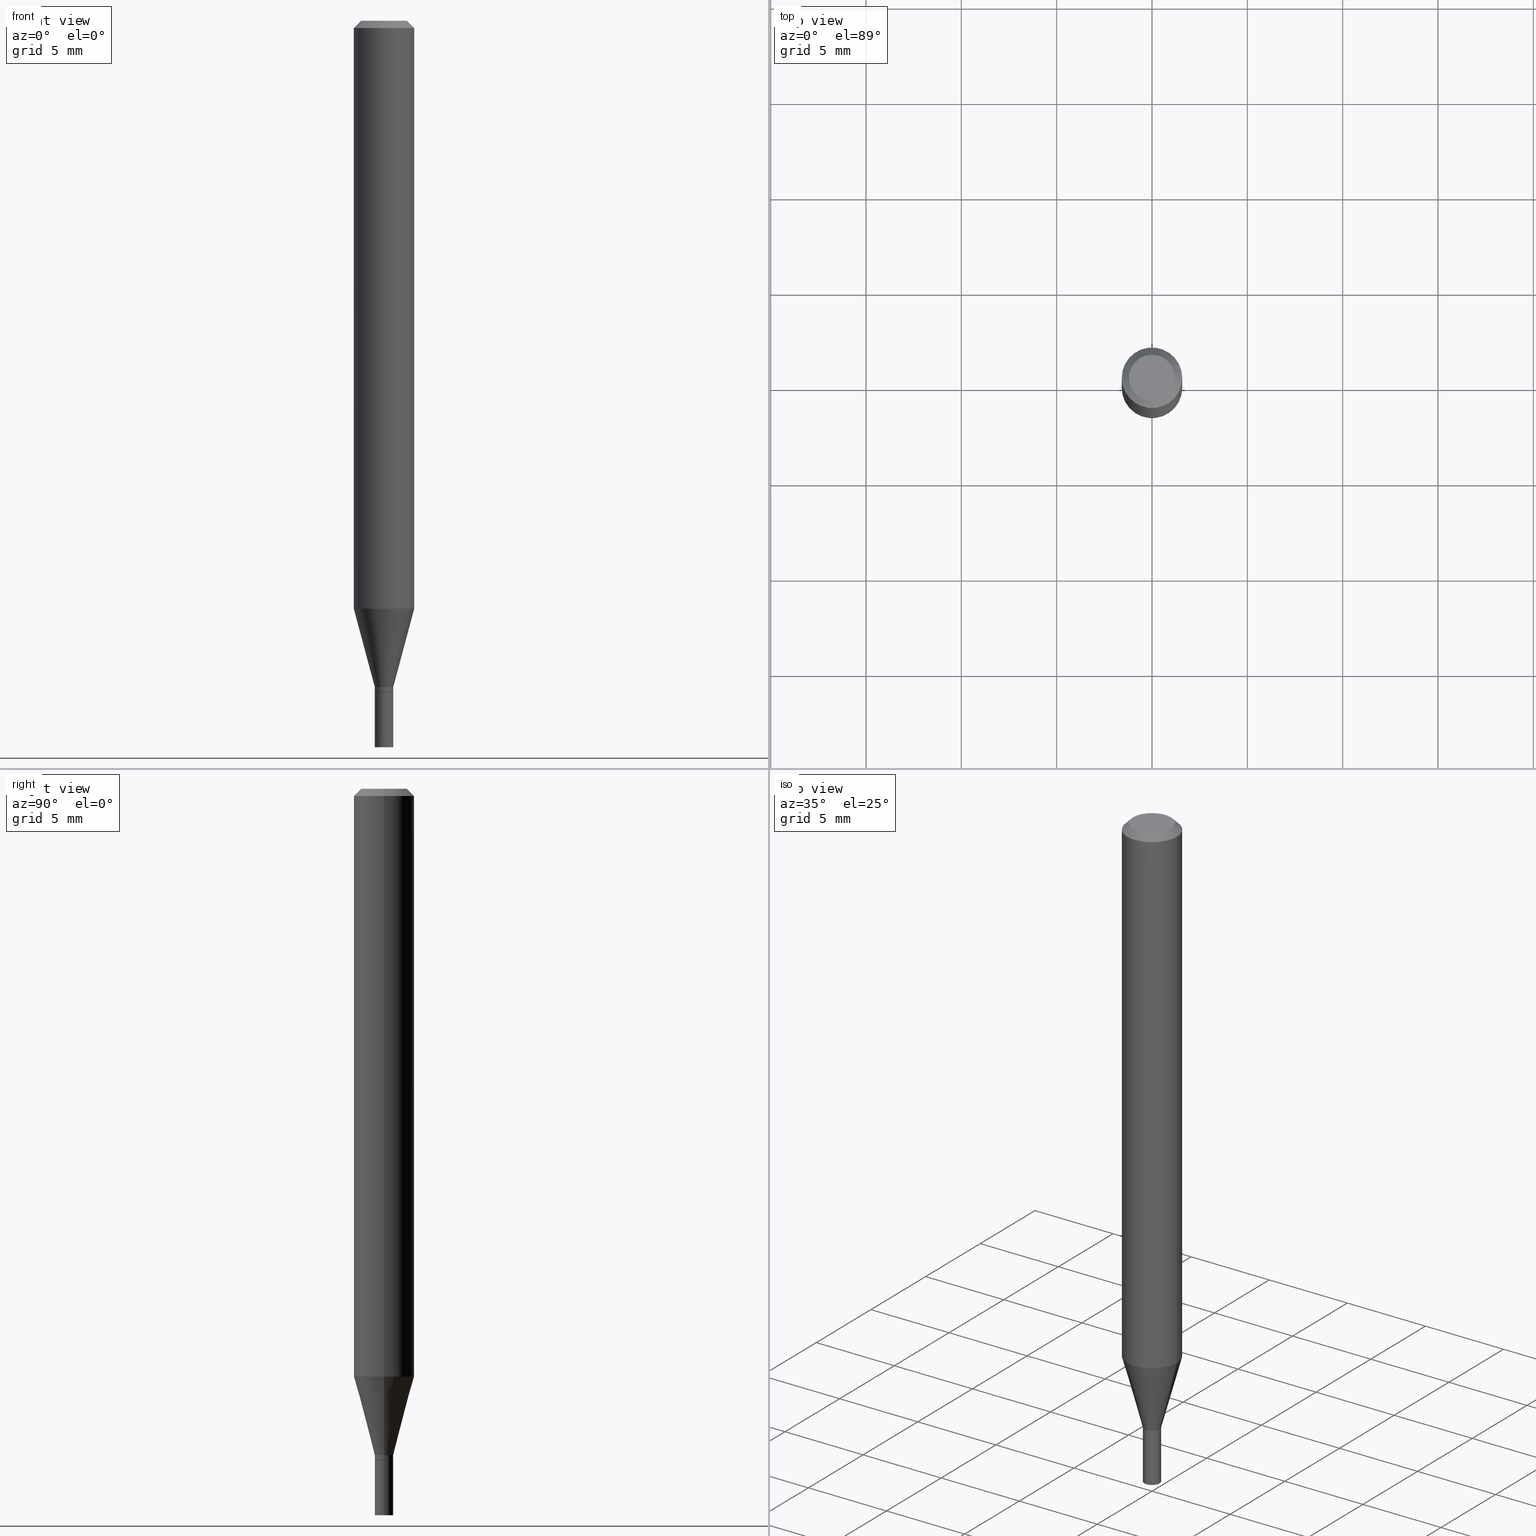
[diagram: canonical four-view strip — front | top / right | iso, engineering-drawing reading convention]
A machine part, canonical four-view strip (front | top / right | iso — engineering-drawing reading convention). The complete STEP part file that produces these views, byte-faithful:
ISO-10303-21;
HEADER;
FILE_DESCRIPTION (( 'STEP AP203' ),
    '1' );
FILE_NAME ('02308.STEP',
    '2024-03-18T20:04:31',
    ( '' ),
    ( '' ),
    'SwSTEP 2.0',
    'SolidWorks 2023',
    '' );
FILE_SCHEMA (( 'CONFIG_CONTROL_DESIGN' ));
ENDSEC;

DATA;
#1 = CARTESIAN_POINT ( 'NONE',  ( 0.01900000000000019382, -4.936954613124209308E-15, -1.376000000000000112 ) ) ;
#2 = LINE ( 'NONE', #113, #342 ) ;
#3 = ADVANCED_FACE ( 'NONE', ( #126 ), #114, .T. ) ;
#4 = ORIENTED_EDGE ( 'NONE', *, *, #362, .F. ) ;
#5 = PLANE ( 'NONE',  #60 ) ;
#6 = DIRECTION ( 'NONE',  ( 1.000000000000000000, -6.982962677686266711E-15, 0.000000000000000000 ) ) ;
#7 = ORIENTED_EDGE ( 'NONE', *, *, #214, .F. ) ;
#8 = CIRCLE ( 'NONE', #229, 0.06250000000000000000 ) ;
#9 = ADVANCED_FACE ( 'NONE', ( #200 ), #52, .T. ) ;
#10 = CARTESIAN_POINT ( 'NONE',  ( 0.06250000000000000000, -4.888073874380388472E-16, -0.01499999999999999944 ) ) ;
#11 = ORIENTED_EDGE ( 'NONE', *, *, #407, .T. ) ;
#12 = FACE_OUTER_BOUND ( 'NONE', #160, .T. ) ;
#13 = ORIENTED_EDGE ( 'NONE', *, *, #407, .F. ) ;
#14 = CIRCLE ( 'NONE', #44, 0.04749999999999999362 ) ;
#15 = CONICAL_SURFACE ( 'NONE', #146, 0.01849999999999999908, 0.7853981633974718157 ) ;
#16 = PERSON_AND_ORGANIZATION_ROLE ( 'creator' ) ;
#17 = CC_DESIGN_PERSON_AND_ORGANIZATION_ASSIGNMENT ( #246, #242, ( #327 ) ) ;
#18 = ORIENTED_EDGE ( 'NONE', *, *, #375, .T. ) ;
#19 = AXIS2_PLACEMENT_3D ( 'NONE', #177, #460, #277 ) ;
#20 = EDGE_CURVE ( 'NONE', #217, #151, #265, .T. ) ;
#21 = AXIS2_PLACEMENT_3D ( 'NONE', #95, #57, #347 ) ;
#22 = LINE ( 'NONE', #161, #35 ) ;
#23 = FACE_OUTER_BOUND ( 'NONE', #121, .T. ) ;
#24 = DIRECTION ( 'NONE',  ( 1.000000000000000000, -6.982962677686267499E-15, 4.884662768193073002E-29 ) ) ;
#25 = APPROVAL_ROLE ( '' ) ;
#26 = AXIS2_PLACEMENT_3D ( 'NONE', #284, #432, #104 ) ;
#27 = FACE_OUTER_BOUND ( 'NONE', #421, .T. ) ;
#28 = LOCAL_TIME ( 16, 4, 31.00000000000000000, #103 ) ;
#29 = CALENDAR_DATE ( 2024, 18, 3 ) ;
#30 = CARTESIAN_POINT ( 'NONE',  ( 0.000000000000000000, 0.000000000000000000, 0.000000000000000000 ) ) ;
#31 = LINE ( 'NONE', #1, #340 ) ;
#32 = EDGE_CURVE ( 'NONE', #423, #336, #87, .T. ) ;
#33 = DIRECTION ( 'NONE',  ( -1.000000000000000000, 6.982962677686265922E-15, -4.876176775795935793E-29 ) ) ;
#34 = EDGE_CURVE ( 'NONE', #295, #38, #22, .T. ) ;
#35 = VECTOR ( 'NONE', #263, 39.37007874015748854 ) ;
#36 = AXIS2_PLACEMENT_3D ( 'NONE', #216, #252, #6 ) ;
#37 = FACE_OUTER_BOUND ( 'NONE', #58, .T. ) ;
#38 = VERTEX_POINT ( 'NONE', #414 ) ;
#39 = CARTESIAN_POINT ( 'NONE',  ( -0.01849999999999999908, -4.705093502346870917E-15, -1.386000000000000121 ) ) ;
#40 = EDGE_CURVE ( 'NONE', #202, #423, #452, .T. ) ;
#41 = ORIENTED_EDGE ( 'NONE', *, *, #345, .T. ) ;
#42 = CARTESIAN_POINT ( 'NONE',  ( 0.01899999999999999953, -5.369898299140757970E-15, -1.500000000000000222 ) ) ;
#43 = ORIENTED_EDGE ( 'NONE', *, *, #445, .F. ) ;
#44 = AXIS2_PLACEMENT_3D ( 'NONE', #357, #178, #24 ) ;
#45 = CC_DESIGN_SECURITY_CLASSIFICATION ( #417, ( #327 ) ) ;
#46 = DIRECTION ( 'NONE',  ( 2.445468806185136597E-29, -3.491481338843145583E-15, -1.000000000000000000 ) ) ;
#47 = ORIENTED_EDGE ( 'NONE', *, *, #214, .T. ) ;
#48 = EDGE_CURVE ( 'NONE', #202, #295, #198, .T. ) ;
#49 = LINE ( 'NONE', #312, #179 ) ;
#50 = ORIENTED_EDGE ( 'NONE', *, *, #255, .F. ) ;
#51 = DIRECTION ( 'NONE',  ( 0.000000000000000000, 0.000000000000000000, 1.000000000000000000 ) ) ;
#52 = CYLINDRICAL_SURFACE ( 'NONE', #21, 0.06250000000000000000 ) ;
#53 = AXIS2_PLACEMENT_3D ( 'NONE', #331, #46, #218 ) ;
#54 = DIRECTION ( 'NONE',  ( -2.445468806185136597E-29, 3.491481338843145583E-15, 1.000000000000000000 ) ) ;
#55 =( CONVERSION_BASED_UNIT ( 'INCH', #377 ) LENGTH_UNIT ( ) NAMED_UNIT ( #211 ) );
#56 = CARTESIAN_POINT ( 'NONE',  ( 0.06250000000000000000, -4.364351673553916694E-16, 3.047610484872459871E-30 ) ) ;
#57 = DIRECTION ( 'NONE',  ( -2.445468806185136597E-29, 3.491481338843145583E-15, 1.000000000000000000 ) ) ;
#58 = EDGE_LOOP ( 'NONE', ( #75, #274, #4, #77 ) ) ;
#59 = AXIS2_PLACEMENT_3D ( 'NONE', #85, #54, #267 ) ;
#60 = AXIS2_PLACEMENT_3D ( 'NONE', #444, #257, #192 ) ;
#61 = APPROVAL_DATE_TIME ( #386, #127 ) ;
#62 = ORIENTED_EDGE ( 'NONE', *, *, #438, .T. ) ;
#63 = ORIENTED_EDGE ( 'NONE', *, *, #234, .T. ) ;
#64 = CYLINDRICAL_SURFACE ( 'NONE', #278, 0.01899999999999999953 ) ;
#65 = DIRECTION ( 'NONE',  ( -2.445468806185136597E-29, 3.491481338843145583E-15, 1.000000000000000000 ) ) ;
#66 = CARTESIAN_POINT ( 'NONE',  ( 3.576687321579069994E-29, -5.368277968210015545E-15, -1.500000000000000222 ) ) ;
#67 = VECTOR ( 'NONE', #346, 39.37007874015748143 ) ;
#68 = CYLINDRICAL_SURFACE ( 'NONE', #228, 0.01899999999999999953 ) ;
#69 = ADVANCED_FACE ( 'NONE', ( #92 ), #285, .F. ) ;
#70 = DIRECTION ( 'NONE',  ( 1.000000000000000000, -6.982962677686266711E-15, 4.876176775795935793E-29 ) ) ;
#71 = CARTESIAN_POINT ( 'NONE',  ( 0.01849999999999999908, -4.968377945173796372E-15, -1.386000000000000121 ) ) ;
#72 = CIRCLE ( 'NONE', #19, 0.01900000000000019382 ) ;
#73 = ORIENTED_EDGE ( 'NONE', *, *, #143, .F. ) ;
#74 = DIRECTION ( 'NONE',  ( 1.000000000000000000, -6.982962677686267499E-15, 4.884662768193073002E-29 ) ) ;
#75 = ORIENTED_EDGE ( 'NONE', *, *, #143, .T. ) ;
#76 = CARTESIAN_POINT ( 'NONE',  ( 3.668203209277705088E-31, -5.237222008264718399E-17, -0.01499999999999999944 ) ) ;
#77 = ORIENTED_EDGE ( 'NONE', *, *, #291, .F. ) ;
#78 = DIRECTION ( 'NONE',  ( -2.445468806185136597E-29, 3.491481338843145583E-15, 1.000000000000000000 ) ) ;
#79 = AXIS2_PLACEMENT_3D ( 'NONE', #247, #322, #241 ) ;
#80 = VECTOR ( 'NONE', #220, 39.37007874015748143 ) ;
#81 = LINE ( 'NONE', #337, #245 ) ;
#82 = VERTEX_POINT ( 'NONE', #427 ) ;
#83 = ADVANCED_FACE ( 'NONE', ( #23 ), #268, .T. ) ;
#84 = PERSON_AND_ORGANIZATION_ROLE ( 'design_owner' ) ;
#85 = CARTESIAN_POINT ( 'NONE',  ( 3.388197030969507728E-29, -4.837447394967178871E-15, -1.385500000000000398 ) ) ;
#86 = DIRECTION ( 'NONE',  ( 1.000000000000000000, -6.982962677686261977E-15, 0.000000000000000000 ) ) ;
#87 = LINE ( 'NONE', #227, #286 ) ;
#88 = CLOSED_SHELL ( 'NONE', ( #183, #326, #3, #9, #120, #311, #206, #221, #339, #100, #83, #159 ) ) ;
#89 = CIRCLE ( 'NONE', #288, 0.01900000000000019382 ) ;
#90 = PERSON_AND_ORGANIZATION ( #275, #175 ) ;
#91 = EDGE_CURVE ( 'NONE', #440, #367, #14, .T. ) ;
#92 = FACE_OUTER_BOUND ( 'NONE', #412, .T. ) ;
#93 = PERSON_AND_ORGANIZATION ( #275, #175 ) ;
#94 = ORIENTED_EDGE ( 'NONE', *, *, #40, .F. ) ;
#95 = CARTESIAN_POINT ( 'NONE',  ( 0.000000000000000000, 0.000000000000000000, 0.000000000000000000 ) ) ;
#96 = ORIENTED_EDGE ( 'NONE', *, *, #255, .T. ) ;
#97 = VECTOR ( 'NONE', #418, 39.37007874015748143 ) ;
#98 = AXIS2_PLACEMENT_3D ( 'NONE', #222, #439, #33 ) ;
#99 = CARTESIAN_POINT ( 'NONE',  ( 3.389419765372599969E-29, -4.839193135636600375E-15, -1.386000000000000121 ) ) ;
#100 = ADVANCED_FACE ( 'NONE', ( #289 ), #458, .F. ) ;
#101 = DATE_AND_TIME ( #462, #196 ) ;
#102 = DIRECTION ( 'NONE',  ( 1.000000000000000000, -6.982962677686254089E-15, 0.000000000000000000 ) ) ;
#103 = COORDINATED_UNIVERSAL_TIME_OFFSET ( 5, 0, .BEHIND. ) ;
#104 = DIRECTION ( 'NONE',  ( 1.000000000000000000, -6.982962677686265133E-15, 4.876176775795935232E-29 ) ) ;
#105 = SECURITY_CLASSIFICATION_LEVEL ( 'unclassified' ) ;
#106 = DIRECTION ( 'NONE',  ( -2.438088387897960049E-29, 3.491481338843145188E-15, 1.000000000000000000 ) ) ;
#107 = VECTOR ( 'NONE', #384, 39.37007874015748143 ) ;
#108 = ADVANCED_FACE ( 'NONE', ( #433 ), #64, .T. ) ;
#109 = EDGE_CURVE ( 'NONE', #303, #217, #441, .T. ) ;
#110 = CYLINDRICAL_SURFACE ( 'NONE', #287, 0.06250000000000000000 ) ;
#111 = CARTESIAN_POINT ( 'NONE',  ( -0.01899999999999999953, -4.903204452156240515E-15, -1.386000000000000121 ) ) ;
#112 = ORIENTED_EDGE ( 'NONE', *, *, #296, .F. ) ;
#113 = CARTESIAN_POINT ( 'NONE',  ( -0.01899999999999999953, 1.350031197944190320E-16, -9.345976671484319990E-31 ) ) ;
#114 = CONICAL_SURFACE ( 'NONE', #459, 0.06250000000000000000, 0.7853981633974452814 ) ;
#115 = ORIENTED_EDGE ( 'NONE', *, *, #291, .T. ) ;
#116 = CARTESIAN_POINT ( 'NONE',  ( 2.967957375574913989E-29, -4.237456542112679022E-15, -1.213655789870754953 ) ) ;
#117 = DIRECTION ( 'NONE',  ( -2.445468806185136597E-29, 3.491481338843145583E-15, 1.000000000000000000 ) ) ;
#118 = ORIENTED_EDGE ( 'NONE', *, *, #109, .F. ) ;
#119 = DIRECTION ( 'NONE',  ( -2.445468806185136597E-29, 3.491481338843145583E-15, 1.000000000000000000 ) ) ;
#120 = ADVANCED_FACE ( 'NONE', ( #430 ), #153, .T. ) ;
#121 = EDGE_LOOP ( 'NONE', ( #378, #231, #115, #94 ) ) ;
#122 = CARTESIAN_POINT ( 'NONE',  ( 3.668203209277705088E-31, -5.237222008264718399E-17, -0.01499999999999999944 ) ) ;
#123 = EDGE_LOOP ( 'NONE', ( #185, #451 ) ) ;
#124 = EDGE_LOOP ( 'NONE', ( #219, #299, #360, #193 ) ) ;
#125 = DIRECTION ( 'NONE',  ( 1.000000000000000000, 0.000000000000000000, 0.000000000000000000 ) ) ;
#126 = FACE_OUTER_BOUND ( 'NONE', #338, .T. ) ;
#127 = APPROVAL ( #240, 'UNSPECIFIED' ) ;
#128 =( GEOMETRIC_REPRESENTATION_CONTEXT ( 3 ) GLOBAL_UNCERTAINTY_ASSIGNED_CONTEXT ( ( #166 ) ) GLOBAL_UNIT_ASSIGNED_CONTEXT ( ( #55, #164, #309 ) ) REPRESENTATION_CONTEXT ( 'NONE', 'WORKASPACE' ) );
#129 = DATE_AND_TIME ( #453, #454 ) ;
#130 = ORIENTED_EDGE ( 'NONE', *, *, #158, .T. ) ;
#131 = APPLICATION_PROTOCOL_DEFINITION ( 'international standard', 'config_control_design', 1994, #283 ) ;
#132 = DIRECTION ( 'NONE',  ( -1.000000000000000000, 6.982962677686266711E-15, 0.000000000000000000 ) ) ;
#133 = EDGE_LOOP ( 'NONE', ( #383, #424, #7, #169 ) ) ;
#134 = DIRECTION ( 'NONE',  ( -2.445468806185136597E-29, 3.491481338843145583E-15, 1.000000000000000000 ) ) ;
#135 = EDGE_CURVE ( 'NONE', #336, #295, #72, .T. ) ;
#136 = CIRCLE ( 'NONE', #154, 0.06250000000000000000 ) ;
#137 = AXIS2_PLACEMENT_3D ( 'NONE', #266, #304, #413 ) ;
#138 = APPROVAL_DATE_TIME ( #101, #203 ) ;
#139 = DIRECTION ( 'NONE',  ( 1.000000000000000000, -6.982962677686261977E-15, 0.000000000000000000 ) ) ;
#140 = PERSON_AND_ORGANIZATION_ROLE ( 'creator' ) ;
#141 = CYLINDRICAL_SURFACE ( 'NONE', #26, 0.01900000000000005851 ) ;
#142 = PERSON_AND_ORGANIZATION ( #275, #175 ) ;
#143 = EDGE_CURVE ( 'NONE', #253, #306, #379, .T. ) ;
#144 = CARTESIAN_POINT ( 'NONE',  ( 3.389419765372599969E-29, -4.839193135636600375E-15, -1.386000000000000121 ) ) ;
#145 = CIRCLE ( 'NONE', #408, 0.01899999999999999953 ) ;
#146 = AXIS2_PLACEMENT_3D ( 'NONE', #300, #329, #180 ) ;
#147 = DIRECTION ( 'NONE',  ( 1.000000000000000000, -6.982962677686265922E-15, 4.876176775795935793E-29 ) ) ;
#148 = LINE ( 'NONE', #186, #188 ) ;
#149 = EDGE_LOOP ( 'NONE', ( #47, #41, #437, #43 ) ) ;
#150 = CARTESIAN_POINT ( 'NONE',  ( -0.04749999999999999362, 3.578768372314211985E-16, 9.340792028744928118E-17 ) ) ;
#151 = VERTEX_POINT ( 'NONE', #176 ) ;
#152 = CARTESIAN_POINT ( 'NONE',  ( 3.388197030969507728E-29, -4.837447394967178871E-15, -1.385500000000000398 ) ) ;
#153 = CONICAL_SURFACE ( 'NONE', #187, 0.01900000000000019382, 0.2617993877991499629 ) ;
#154 = AXIS2_PLACEMENT_3D ( 'NONE', #212, #117, #157 ) ;
#155 = ORIENTED_EDGE ( 'NONE', *, *, #388, .T. ) ;
#156 = DIRECTION ( 'NONE',  ( -2.445468806185136597E-29, 3.491481338843145583E-15, 1.000000000000000000 ) ) ;
#157 = DIRECTION ( 'NONE',  ( 1.000000000000000000, -6.982962677686262766E-15, 0.000000000000000000 ) ) ;
#158 = EDGE_CURVE ( 'NONE', #151, #355, #145, .T. ) ;
#159 = ADVANCED_FACE ( 'NONE', ( #323 ), #358, .T. ) ;
#160 = EDGE_LOOP ( 'NONE', ( #163, #62, #189, #353 ) ) ;
#161 = CARTESIAN_POINT ( 'NONE',  ( -0.01900000000000019382, -4.669275202453748782E-15, -1.376000000000000112 ) ) ;
#162 = APPROVAL_PERSON_ORGANIZATION ( #93, #203, #276 ) ;
#163 = ORIENTED_EDGE ( 'NONE', *, *, #34, .F. ) ;
#164 =( NAMED_UNIT ( * ) PLANE_ANGLE_UNIT ( ) SI_UNIT ( $, .RADIAN. ) );
#165 = CARTESIAN_POINT ( 'NONE',  ( -0.01900000000000005851, 1.350031197944194510E-16, -9.345976671484349768E-31 ) ) ;
#166 = UNCERTAINTY_MEASURE_WITH_UNIT (LENGTH_MEASURE( 1.000000000000000082E-05 ), #55, 'distance_accuracy_value', 'NONE');
#167 = DATE_AND_TIME ( #194, #401 ) ;
#168 = CARTESIAN_POINT ( 'NONE',  ( -0.01849999999999999908, -4.707742729520982118E-15, -1.386000000000000121 ) ) ;
#169 = ORIENTED_EDGE ( 'NONE', *, *, #191, .F. ) ;
#170 = ADVANCED_FACE ( 'NONE', ( #363 ), #68, .T. ) ;
#171 = DIRECTION ( 'NONE',  ( 1.000000000000000000, -6.982962677686254089E-15, 0.000000000000000000 ) ) ;
#172 = APPLICATION_CONTEXT ( 'configuration controlled 3d designs of mechanical parts and assemblies' ) ;
#173 = CARTESIAN_POINT ( 'NONE',  ( 0.000000000000000000, 0.000000000000000000, 0.000000000000000000 ) ) ;
#174 = AXIS2_PLACEMENT_3D ( 'NONE', #99, #204, #239 ) ;
#175 = ORGANIZATION ( 'UNSPECIFIED', 'UNSPECIFIED', '' ) ;
#176 = CARTESIAN_POINT ( 'NONE',  ( 0.01899999999999999953, -4.971869426512640168E-15, -1.386000000000000121 ) ) ;
#177 = CARTESIAN_POINT ( 'NONE',  ( 3.364965077310747863E-29, -4.804278322248168726E-15, -1.376000000000000112 ) ) ;
#178 = DIRECTION ( 'NONE',  ( -2.445468806185136597E-29, 3.491481338843145583E-15, 1.000000000000000000 ) ) ;
#179 = VECTOR ( 'NONE', #343, 39.37007874015748143 ) ;
#180 = DIRECTION ( 'NONE',  ( 1.000000000000000000, -6.982962677686254089E-15, 0.000000000000000000 ) ) ;
#181 = MANIFOLD_SOLID_BREP ( 'Body-Move/Copy2[2]', #88 ) ;
#182 = LINE ( 'NONE', #302, #80 ) ;
#183 = ADVANCED_FACE ( 'NONE', ( #27 ), #141, .T. ) ;
#184 = DIRECTION ( 'NONE',  ( -2.445468806185136597E-29, 3.491481338843145583E-15, 1.000000000000000000 ) ) ;
#185 = ORIENTED_EDGE ( 'NONE', *, *, #296, .T. ) ;
#186 = CARTESIAN_POINT ( 'NONE',  ( -0.06250000000000000000, 3.840629472727444916E-16, -0.01499999999999999944 ) ) ;
#187 = AXIS2_PLACEMENT_3D ( 'NONE', #361, #65, #139 ) ;
#188 = VECTOR ( 'NONE', #364, 39.37007874015748143 ) ;
#189 = ORIENTED_EDGE ( 'NONE', *, *, #191, .T. ) ;
#190 = CC_DESIGN_PERSON_AND_ORGANIZATION_ASSIGNMENT ( #321, #140, ( #327 ) ) ;
#191 = EDGE_CURVE ( 'NONE', #336, #82, #31, .T. ) ;
#192 = DIRECTION ( 'NONE',  ( -1.000000000000000000, 6.982962677686265922E-15, -4.876176775795935793E-29 ) ) ;
#193 = ORIENTED_EDGE ( 'NONE', *, *, #438, .F. ) ;
#194 = CALENDAR_DATE ( 2024, 18, 3 ) ;
#195 = ORIENTED_EDGE ( 'NONE', *, *, #109, .T. ) ;
#196 = LOCAL_TIME ( 16, 4, 31.00000000000000000, #235 ) ;
#197 = CARTESIAN_POINT ( 'NONE',  ( -0.06250000000000000000, -1.700825171247600434E-15, -0.01499999999999999944 ) ) ;
#198 = LINE ( 'NONE', #165, #97 ) ;
#199 = PERSON_AND_ORGANIZATION ( #275, #175 ) ;
#200 = FACE_OUTER_BOUND ( 'NONE', #149, .T. ) ;
#201 = ORIENTED_EDGE ( 'NONE', *, *, #375, .F. ) ;
#202 = VERTEX_POINT ( 'NONE', #392 ) ;
#203 = APPROVAL ( #317, 'UNSPECIFIED' ) ;
#204 = DIRECTION ( 'NONE',  ( -2.438088387897960049E-29, 3.491481338843145188E-15, 1.000000000000000000 ) ) ;
#205 = DIRECTION ( 'NONE',  ( -2.445468806185136597E-29, 3.491481338843145583E-15, 1.000000000000000000 ) ) ;
#206 = ADVANCED_FACE ( 'NONE', ( #435 ), #110, .T. ) ;
#207 = APPROVAL_PERSON_ORGANIZATION ( #142, #127, #25 ) ;
#208 = PERSON_AND_ORGANIZATION_ROLE ( 'classification_officer' ) ;
#209 = DIRECTION ( 'NONE',  ( 1.000000000000000000, -6.982962677686281699E-15, 0.000000000000000000 ) ) ;
#210 = DIRECTION ( 'NONE',  ( -2.445468806185136597E-29, 3.491481338843145583E-15, 1.000000000000000000 ) ) ;
#211 = DIMENSIONAL_EXPONENTS ( 1.000000000000000000, 0.000000000000000000, 0.000000000000000000, 0.000000000000000000, 0.000000000000000000, 0.000000000000000000, 0.000000000000000000 ) ;
#212 = CARTESIAN_POINT ( 'NONE',  ( 2.967957375574913989E-29, -4.237456542112679022E-15, -1.213655789870754953 ) ) ;
#213 = AXIS2_PLACEMENT_3D ( 'NONE', #325, #134, #171 ) ;
#214 = EDGE_CURVE ( 'NONE', #82, #38, #136, .T. ) ;
#215 = AXIS2_PLACEMENT_3D ( 'NONE', #399, #78, #74 ) ;
#216 = CARTESIAN_POINT ( 'NONE',  ( 3.668203209277705088E-31, -5.237222008264718399E-17, -0.01499999999999999944 ) ) ;
#217 = VERTEX_POINT ( 'NONE', #42 ) ;
#218 = DIRECTION ( 'NONE',  ( -1.000000000000000000, 6.982962677686266711E-15, 0.000000000000000000 ) ) ;
#219 = ORIENTED_EDGE ( 'NONE', *, *, #48, .F. ) ;
#220 = DIRECTION ( 'NONE',  ( 0.7071067811865642261, -2.468850131082431399E-15, 0.7071067811865309194 ) ) ;
#221 = ADVANCED_FACE ( 'NONE', ( #405 ), #428, .T. ) ;
#222 = CARTESIAN_POINT ( 'NONE',  ( 1.326762908760729501E-16, 0.01899999999999515965, -1.386000000000000121 ) ) ;
#223 = VERTEX_POINT ( 'NONE', #10 ) ;
#224 = COORDINATED_UNIVERSAL_TIME_OFFSET ( 5, 0, .BEHIND. ) ;
#225 = ORIENTED_EDGE ( 'NONE', *, *, #135, .F. ) ;
#226 = CARTESIAN_POINT ( 'NONE',  ( 3.364965077310747863E-29, -4.804278322248168726E-15, -1.376000000000000112 ) ) ;
#227 = CARTESIAN_POINT ( 'NONE',  ( 0.01900000000000005851, -1.326762908760394481E-16, 9.264735874012305402E-31 ) ) ;
#228 = AXIS2_PLACEMENT_3D ( 'NONE', #281, #210, #391 ) ;
#229 = AXIS2_PLACEMENT_3D ( 'NONE', #76, #449, #232 ) ;
#230 = COORDINATED_UNIVERSAL_TIME_OFFSET ( 5, 0, .BEHIND. ) ;
#231 = ORIENTED_EDGE ( 'NONE', *, *, #393, .T. ) ;
#232 = DIRECTION ( 'NONE',  ( 1.000000000000000000, -6.982962677686266711E-15, 0.000000000000000000 ) ) ;
#233 = DIRECTION ( 'NONE',  ( 2.445468806185136597E-29, -3.491481338843145583E-15, -1.000000000000000000 ) ) ;
#234 = EDGE_CURVE ( 'NONE', #303, #355, #2, .T. ) ;
#235 = COORDINATED_UNIVERSAL_TIME_OFFSET ( 5, 0, .BEHIND. ) ;
#236 = CARTESIAN_POINT ( 'NONE',  ( 0.01899999999999999953, -1.326762908760390537E-16, 9.264735874012277376E-31 ) ) ;
#237 = ORIENTED_EDGE ( 'NONE', *, *, #91, .F. ) ;
#238 = AXIS2_PLACEMENT_3D ( 'NONE', #368, #156, #402 ) ;
#239 = DIRECTION ( 'NONE',  ( 1.000000000000000000, -6.982962677686265922E-15, 4.876176775795935793E-29 ) ) ;
#240 = APPROVAL_STATUS ( 'not_yet_approved' ) ;
#241 = DIRECTION ( 'NONE',  ( 1.000000000000000000, -6.982962677686281699E-15, 0.000000000000000000 ) ) ;
#242 = PERSON_AND_ORGANIZATION_ROLE ( 'design_supplier' ) ;
#243 = DIRECTION ( 'NONE',  ( 0.2588190451025212391, 1.565188264969622362E-15, 0.9659258262890679791 ) ) ;
#244 = AXIS2_PLACEMENT_3D ( 'NONE', #30, #397, #463 ) ;
#245 = VECTOR ( 'NONE', #328, 39.37007874015748143 ) ;
#246 = PERSON_AND_ORGANIZATION ( #275, #175 ) ;
#247 = CARTESIAN_POINT ( 'NONE',  ( 3.668203209277704895E-29, -5.237222008264718177E-15, -1.500000000000000222 ) ) ;
#248 = CARTESIAN_POINT ( 'NONE',  ( 0.000000000000000000, 0.000000000000000000, 0.000000000000000000 ) ) ;
#249 = EDGE_CURVE ( 'NONE', #367, #396, #148, .T. ) ;
#250 = CARTESIAN_POINT ( 'NONE',  ( 3.668203209277704895E-29, -5.237222008264718177E-15, -1.500000000000000222 ) ) ;
#251 = ORIENTED_EDGE ( 'NONE', *, *, #48, .T. ) ;
#252 = DIRECTION ( 'NONE',  ( -2.445468806185136597E-29, 3.491481338843145583E-15, 1.000000000000000000 ) ) ;
#253 = VERTEX_POINT ( 'NONE', #71 ) ;
#254 = DIRECTION ( 'NONE',  ( -2.445468806185136597E-29, 3.491481338843145583E-15, 1.000000000000000000 ) ) ;
#255 = EDGE_CURVE ( 'NONE', #355, #151, #448, .T. ) ;
#256 = ORIENTED_EDGE ( 'NONE', *, *, #385, .T. ) ;
#257 = DIRECTION ( 'NONE',  ( 2.438088387897960049E-29, -3.491481338843145188E-15, -1.000000000000000000 ) ) ;
#258 = CLOSED_SHELL ( 'NONE', ( #108, #69, #170, #307 ) ) ;
#259 = PLANE ( 'NONE',  #98 ) ;
#260 = CC_DESIGN_APPROVAL ( #290, ( #271 ) ) ;
#261 = ORIENTED_EDGE ( 'NONE', *, *, #32, .F. ) ;
#262 = CARTESIAN_POINT ( 'NONE',  ( 0.000000000000000000, 0.000000000000000000, 0.000000000000000000 ) ) ;
#263 = DIRECTION ( 'NONE',  ( -0.2588190451025212391, 5.211531920934549464E-15, 0.9659258262890679791 ) ) ;
#264 = CC_DESIGN_DATE_AND_TIME_ASSIGNMENT ( #129, #420, ( #271 ) ) ;
#265 = LINE ( 'NONE', #236, #394 ) ;
#266 = CARTESIAN_POINT ( 'NONE',  ( 3.389419765372599969E-29, -4.839193135636600375E-15, -1.386000000000000121 ) ) ;
#267 = DIRECTION ( 'NONE',  ( 1.000000000000000000, -6.982962677686258822E-15, 0.000000000000000000 ) ) ;
#268 = CONICAL_SURFACE ( 'NONE', #213, 0.01849999999999999908, 0.7853981633974718157 ) ;
#269 = AXIS2_PLACEMENT_3D ( 'NONE', #116, #254, #404 ) ;
#270 = LINE ( 'NONE', #168, #107 ) ;
#271 = PRODUCT_DEFINITION ( 'UNKNOWN', '', #327, #315 ) ;
#272 = EDGE_LOOP ( 'NONE', ( #13, #112, #373, #155 ) ) ;
#273 = APPROVAL_ROLE ( '' ) ;
#274 = ORIENTED_EDGE ( 'NONE', *, *, #431, .T. ) ;
#275 = PERSON ( 'UNSPECIFIED', 'UNSPECIFIED', 'UNSPECIFIED', ('UNSPECIFIED'), ('UNSPECIFIED'), ('UNSPECIFIED') ) ;
#276 = APPROVAL_ROLE ( '' ) ;
#277 = DIRECTION ( 'NONE',  ( 1.000000000000000000, -6.982962677686261977E-15, 0.000000000000000000 ) ) ;
#278 = AXIS2_PLACEMENT_3D ( 'NONE', #173, #318, #466 ) ;
#279 = CIRCLE ( 'NONE', #320, 0.01899999999999992320 ) ;
#280 = COORDINATED_UNIVERSAL_TIME_OFFSET ( 5, 0, .BEHIND. ) ;
#281 = CARTESIAN_POINT ( 'NONE',  ( 0.000000000000000000, 0.000000000000000000, 0.000000000000000000 ) ) ;
#282 = PERSON_AND_ORGANIZATION ( #275, #175 ) ;
#283 = APPLICATION_CONTEXT ( 'configuration controlled 3d designs of mechanical parts and assemblies' ) ;
#284 = CARTESIAN_POINT ( 'NONE',  ( 0.000000000000000000, 0.000000000000000000, 0.000000000000000000 ) ) ;
#285 = PLANE ( 'NONE',  #350 ) ;
#286 = VECTOR ( 'NONE', #381, 39.37007874015748143 ) ;
#287 = AXIS2_PLACEMENT_3D ( 'NONE', #248, #398, #70 ) ;
#288 = AXIS2_PLACEMENT_3D ( 'NONE', #226, #422, #86 ) ;
#289 = FACE_OUTER_BOUND ( 'NONE', #344, .T. ) ;
#290 = APPROVAL ( #415, 'UNSPECIFIED' ) ;
#291 = EDGE_CURVE ( 'NONE', #253, #423, #182, .T. ) ;
#292 = CARTESIAN_POINT ( 'NONE',  ( -0.01899999999999999953, -4.903204452156240515E-15, -1.500000000000000222 ) ) ;
#293 = ORIENTED_EDGE ( 'NONE', *, *, #249, .F. ) ;
#294 = DIRECTION ( 'NONE',  ( -2.445468806185136597E-29, 3.491481338843145583E-15, 1.000000000000000000 ) ) ;
#295 = VERTEX_POINT ( 'NONE', #447 ) ;
#296 = EDGE_CURVE ( 'NONE', #367, #440, #395, .T. ) ;
#297 = CONICAL_SURFACE ( 'NONE', #359, 0.01900000000000019382, 0.2617993877991499629 ) ;
#298 = DIRECTION ( 'NONE',  ( 1.000000000000000000, -6.982962677686258822E-15, 0.000000000000000000 ) ) ;
#299 = ORIENTED_EDGE ( 'NONE', *, *, #40, .T. ) ;
#300 = CARTESIAN_POINT ( 'NONE',  ( 3.389419765372599969E-29, -4.839193135636600375E-15, -1.386000000000000121 ) ) ;
#301 = EDGE_LOOP ( 'NONE', ( #426, #195, #403, #50 ) ) ;
#302 = CARTESIAN_POINT ( 'NONE',  ( 0.01849999999999999908, -4.968377945173796372E-15, -1.386000000000000121 ) ) ;
#303 = VERTEX_POINT ( 'NONE', #292 ) ;
#304 = DIRECTION ( 'NONE',  ( -2.445468806185136597E-29, 3.491481338843145583E-15, 1.000000000000000000 ) ) ;
#305 = CIRCLE ( 'NONE', #269, 0.06250000000000000000 ) ;
#306 = VERTEX_POINT ( 'NONE', #39 ) ;
#307 = ADVANCED_FACE ( 'NONE', ( #335 ), #259, .F. ) ;
#308 = ORIENTED_EDGE ( 'NONE', *, *, #345, .F. ) ;
#309 =( NAMED_UNIT ( * ) SI_UNIT ( $, .STERADIAN. ) SOLID_ANGLE_UNIT ( ) );
#310 = ORIENTED_EDGE ( 'NONE', *, *, #388, .F. ) ;
#311 = ADVANCED_FACE ( 'NONE', ( #12 ), #297, .T. ) ;
#312 = CARTESIAN_POINT ( 'NONE',  ( 0.06250000000000000000, -4.811533449433679005E-16, -0.01499999999999999944 ) ) ;
#313 = PRODUCT_RELATED_PRODUCT_CATEGORY ( 'detail', '', ( #434 ) ) ;
#314 = APPROVAL_PERSON_ORGANIZATION ( #90, #290, #273 ) ;
#315 = DESIGN_CONTEXT ( 'detailed design', #172, 'design' ) ;
#316 =( LENGTH_UNIT ( ) NAMED_UNIT ( * ) SI_UNIT ( $, .METRE. ) );
#317 = APPROVAL_STATUS ( 'not_yet_approved' ) ;
#318 = DIRECTION ( 'NONE',  ( -2.445468806185136597E-29, 3.491481338843145583E-15, 1.000000000000000000 ) ) ;
#319 = DIRECTION ( 'NONE',  ( -2.445468806185136597E-29, 3.491481338843145583E-15, 1.000000000000000000 ) ) ;
#320 = AXIS2_PLACEMENT_3D ( 'NONE', #152, #119, #298 ) ;
#321 = PERSON_AND_ORGANIZATION ( #275, #175 ) ;
#322 = DIRECTION ( 'NONE',  ( -2.445468806185136597E-29, 3.491481338843145583E-15, 1.000000000000000000 ) ) ;
#323 = FACE_OUTER_BOUND ( 'NONE', #124, .T. ) ;
#324 = EDGE_CURVE ( 'NONE', #223, #396, #352, .T. ) ;
#325 = CARTESIAN_POINT ( 'NONE',  ( 3.389419765372599969E-29, -4.839193135636600375E-15, -1.386000000000000121 ) ) ;
#326 = ADVANCED_FACE ( 'NONE', ( #37 ), #15, .T. ) ;
#327 = PRODUCT_DEFINITION_FORMATION_WITH_SPECIFIED_SOURCE ( 'ANY', '', #434, .NOT_KNOWN. ) ;
#328 = DIRECTION ( 'NONE',  ( -2.445468806185136877E-29, 3.491481338843145188E-15, 1.000000000000000000 ) ) ;
#329 = DIRECTION ( 'NONE',  ( -2.445468806185136597E-29, 3.491481338843145583E-15, 1.000000000000000000 ) ) ;
#330 = MANIFOLD_SOLID_BREP ( 'Body-Move/Copy2[1]', #258 ) ;
#331 = CARTESIAN_POINT ( 'NONE',  ( 3.668203209277705088E-31, -5.237222008264718399E-17, -0.01499999999999999944 ) ) ;
#332 = EDGE_LOOP ( 'NONE', ( #18, #63, #369, #411 ) ) ;
#333 = AXIS2_PLACEMENT_3D ( 'NONE', #390, #319, #102 ) ;
#334 = CC_DESIGN_APPROVAL ( #127, ( #417 ) ) ;
#335 = FACE_OUTER_BOUND ( 'NONE', #371, .T. ) ;
#336 = VERTEX_POINT ( 'NONE', #410 ) ;
#337 = CARTESIAN_POINT ( 'NONE',  ( -0.06250000000000000000, 4.440892098500626162E-16, -3.074334431409316114E-30 ) ) ;
#338 = EDGE_LOOP ( 'NONE', ( #237, #11, #387, #293 ) ) ;
#339 = ADVANCED_FACE ( 'NONE', ( #370 ), #5, .F. ) ;
#340 = VECTOR ( 'NONE', #243, 39.37007874015748854 ) ;
#341 = PERSON_AND_ORGANIZATION ( #275, #175 ) ;
#342 = VECTOR ( 'NONE', #366, 39.37007874015748143 ) ;
#343 = DIRECTION ( 'NONE',  ( 0.7071067811865453523, -7.319954787623248157E-15, -0.7071067811865496822 ) ) ;
#344 = EDGE_LOOP ( 'NONE', ( #73, #446 ) ) ;
#345 = EDGE_CURVE ( 'NONE', #38, #396, #81, .T. ) ;
#346 = DIRECTION ( 'NONE',  ( -2.445468806185136877E-29, 3.491481338843145188E-15, 1.000000000000000000 ) ) ;
#347 = DIRECTION ( 'NONE',  ( 1.000000000000000000, -6.982962677686266711E-15, 4.876176775795935793E-29 ) ) ;
#348 = ADVANCED_BREP_SHAPE_REPRESENTATION ( '02308', ( #330, #181, #354 ), #128 ) ;
#349 = CARTESIAN_POINT ( 'NONE',  ( 0.04749999999999999362, -4.035134999187576651E-16, 9.340792028745427319E-17 ) ) ;
#350 = AXIS2_PLACEMENT_3D ( 'NONE', #66, #106, #147 ) ;
#351 = DIRECTION ( 'NONE',  ( -2.445468806185136877E-29, 3.491481338843145188E-15, 1.000000000000000000 ) ) ;
#352 = CIRCLE ( 'NONE', #36, 0.06250000000000000000 ) ;
#353 = ORIENTED_EDGE ( 'NONE', *, *, #385, .F. ) ;
#354 = AXIS2_PLACEMENT_3D ( 'NONE', #262, #51, #125 ) ;
#355 = VERTEX_POINT ( 'NONE', #111 ) ;
#356 = CC_DESIGN_PERSON_AND_ORGANIZATION_ASSIGNMENT ( #199, #84, ( #434 ) ) ;
#357 = CARTESIAN_POINT ( 'NONE',  ( -2.284261553135908873E-45, 3.261320105837856889E-31, 9.340792028745169707E-17 ) ) ;
#358 = CYLINDRICAL_SURFACE ( 'NONE', #244, 0.01900000000000005851 ) ;
#359 = AXIS2_PLACEMENT_3D ( 'NONE', #372, #184, #436 ) ;
#360 = ORIENTED_EDGE ( 'NONE', *, *, #32, .T. ) ;
#361 = CARTESIAN_POINT ( 'NONE',  ( 3.364965077310747863E-29, -4.804278322248168726E-15, -1.376000000000000112 ) ) ;
#362 = EDGE_CURVE ( 'NONE', #423, #202, #279, .T. ) ;
#363 = FACE_OUTER_BOUND ( 'NONE', #301, .T. ) ;
#364 = DIRECTION ( 'NONE',  ( -0.7071067811865453523, 2.468850131082234184E-15, -0.7071067811865496822 ) ) ;
#365 = AXIS2_PLACEMENT_3D ( 'NONE', #250, #294, #443 ) ;
#366 = DIRECTION ( 'NONE',  ( -2.445468806185136877E-29, 3.491481338843145188E-15, 1.000000000000000000 ) ) ;
#367 = VERTEX_POINT ( 'NONE', #150 ) ;
#368 = CARTESIAN_POINT ( 'NONE',  ( 3.389419765372599969E-29, -4.839193135636600375E-15, -1.386000000000000121 ) ) ;
#369 = ORIENTED_EDGE ( 'NONE', *, *, #158, .F. ) ;
#370 = FACE_OUTER_BOUND ( 'NONE', #123, .T. ) ;
#371 = EDGE_LOOP ( 'NONE', ( #130, #96 ) ) ;
#372 = CARTESIAN_POINT ( 'NONE',  ( 3.364965077310747863E-29, -4.804278322248168726E-15, -1.376000000000000112 ) ) ;
#373 = ORIENTED_EDGE ( 'NONE', *, *, #249, .T. ) ;
#374 = CC_DESIGN_PERSON_AND_ORGANIZATION_ASSIGNMENT ( #282, #208, ( #417 ) ) ;
#375 = EDGE_CURVE ( 'NONE', #217, #303, #380, .T. ) ;
#376 = CARTESIAN_POINT ( 'NONE',  ( 0.01899999999999992320, -4.970123685843217876E-15, -1.385500000000000398 ) ) ;
#377 = LENGTH_MEASURE_WITH_UNIT ( LENGTH_MEASURE( 0.02539999999999999897 ), #316 );
#378 = ORIENTED_EDGE ( 'NONE', *, *, #431, .F. ) ;
#379 = CIRCLE ( 'NONE', #333, 0.01849999999999999908 ) ;
#380 = CIRCLE ( 'NONE', #365, 0.01899999999999999953 ) ;
#381 = DIRECTION ( 'NONE',  ( -2.445468806185136877E-29, 3.491481338843145188E-15, 1.000000000000000000 ) ) ;
#382 = APPROVAL_DATE_TIME ( #167, #290 ) ;
#383 = ORIENTED_EDGE ( 'NONE', *, *, #135, .T. ) ;
#384 = DIRECTION ( 'NONE',  ( -0.7071067811865642261, 7.493145998870414114E-15, 0.7071067811865309194 ) ) ;
#385 = EDGE_CURVE ( 'NONE', #38, #82, #305, .T. ) ;
#386 = DATE_AND_TIME ( #29, #28 ) ;
#387 = ORIENTED_EDGE ( 'NONE', *, *, #324, .T. ) ;
#388 = EDGE_CURVE ( 'NONE', #396, #223, #8, .T. ) ;
#389 = DATE_TIME_ROLE ( 'classification_date' ) ;
#390 = CARTESIAN_POINT ( 'NONE',  ( 3.389419765372599969E-29, -4.839193135636600375E-15, -1.386000000000000121 ) ) ;
#391 = DIRECTION ( 'NONE',  ( 1.000000000000000000, -6.982962677686265922E-15, 4.876176775795935793E-29 ) ) ;
#392 = CARTESIAN_POINT ( 'NONE',  ( -0.01899999999999992320, -4.702444275172761294E-15, -1.385500000000000398 ) ) ;
#393 = EDGE_CURVE ( 'NONE', #306, #253, #461, .T. ) ;
#394 = VECTOR ( 'NONE', #351, 39.37007874015748143 ) ;
#395 = CIRCLE ( 'NONE', #215, 0.04749999999999999362 ) ;
#396 = VERTEX_POINT ( 'NONE', #197 ) ;
#397 = DIRECTION ( 'NONE',  ( -2.445468806185136597E-29, 3.491481338843145583E-15, 1.000000000000000000 ) ) ;
#398 = DIRECTION ( 'NONE',  ( -2.445468806185136597E-29, 3.491481338843145583E-15, 1.000000000000000000 ) ) ;
#399 = CARTESIAN_POINT ( 'NONE',  ( -2.284261553135908873E-45, 3.261320105837856889E-31, 9.340792028745169707E-17 ) ) ;
#400 = ORIENTED_EDGE ( 'NONE', *, *, #362, .T. ) ;
#401 = LOCAL_TIME ( 16, 4, 31.00000000000000000, #224 ) ;
#402 = DIRECTION ( 'NONE',  ( 1.000000000000000000, -6.982962677686281699E-15, 0.000000000000000000 ) ) ;
#403 = ORIENTED_EDGE ( 'NONE', *, *, #20, .T. ) ;
#404 = DIRECTION ( 'NONE',  ( 1.000000000000000000, -6.982962677686262766E-15, 0.000000000000000000 ) ) ;
#405 = FACE_OUTER_BOUND ( 'NONE', #272, .T. ) ;
#406 = CC_DESIGN_DATE_AND_TIME_ASSIGNMENT ( #429, #389, ( #417 ) ) ;
#407 = EDGE_CURVE ( 'NONE', #440, #223, #49, .T. ) ;
#408 = AXIS2_PLACEMENT_3D ( 'NONE', #144, #205, #209 ) ;
#409 = CC_DESIGN_APPROVAL ( #203, ( #327 ) ) ;
#410 = CARTESIAN_POINT ( 'NONE',  ( 0.01900000000000019382, -4.936954613124209308E-15, -1.376000000000000112 ) ) ;
#411 = ORIENTED_EDGE ( 'NONE', *, *, #20, .F. ) ;
#412 = EDGE_LOOP ( 'NONE', ( #201, #118 ) ) ;
#413 = DIRECTION ( 'NONE',  ( 1.000000000000000000, -6.982962677686254089E-15, 0.000000000000000000 ) ) ;
#414 = CARTESIAN_POINT ( 'NONE',  ( -0.06250000000000000000, -3.793367332262617194E-15, -1.213655789870754953 ) ) ;
#415 = APPROVAL_STATUS ( 'not_yet_approved' ) ;
#416 = APPLICATION_PROTOCOL_DEFINITION ( 'international standard', 'config_control_design', 1994, #172 ) ;
#417 = SECURITY_CLASSIFICATION ( '', '', #105 ) ;
#418 = DIRECTION ( 'NONE',  ( -2.445468806185136877E-29, 3.491481338843145188E-15, 1.000000000000000000 ) ) ;
#419 = ORIENTED_EDGE ( 'NONE', *, *, #445, .T. ) ;
#420 = DATE_TIME_ROLE ( 'creation_date' ) ;
#421 = EDGE_LOOP ( 'NONE', ( #400, #251, #225, #261 ) ) ;
#422 = DIRECTION ( 'NONE',  ( -2.445468806185136597E-29, 3.491481338843145583E-15, 1.000000000000000000 ) ) ;
#423 = VERTEX_POINT ( 'NONE', #376 ) ;
#424 = ORIENTED_EDGE ( 'NONE', *, *, #34, .T. ) ;
#425 = SHAPE_DEFINITION_REPRESENTATION ( #464, #348 ) ;
#426 = ORIENTED_EDGE ( 'NONE', *, *, #234, .F. ) ;
#427 = CARTESIAN_POINT ( 'NONE',  ( 0.06250000000000000000, -4.673891709468070691E-15, -1.213655789870754953 ) ) ;
#428 = CONICAL_SURFACE ( 'NONE', #53, 0.06250000000000000000, 0.7853981633974452814 ) ;
#429 = DATE_AND_TIME ( #465, #442 ) ;
#430 = FACE_OUTER_BOUND ( 'NONE', #133, .T. ) ;
#431 = EDGE_CURVE ( 'NONE', #306, #202, #270, .T. ) ;
#432 = DIRECTION ( 'NONE',  ( -2.445468806185136597E-29, 3.491481338843145583E-15, 1.000000000000000000 ) ) ;
#433 = FACE_OUTER_BOUND ( 'NONE', #332, .T. ) ;
#434 = PRODUCT ( '02308', '02308', '', ( #450 ) ) ;
#435 = FACE_OUTER_BOUND ( 'NONE', #457, .T. ) ;
#436 = DIRECTION ( 'NONE',  ( 1.000000000000000000, -6.982962677686261977E-15, 0.000000000000000000 ) ) ;
#437 = ORIENTED_EDGE ( 'NONE', *, *, #324, .F. ) ;
#438 = EDGE_CURVE ( 'NONE', #295, #336, #89, .T. ) ;
#439 = DIRECTION ( 'NONE',  ( 2.438088387897960049E-29, -3.491481338843145188E-15, -1.000000000000000000 ) ) ;
#440 = VERTEX_POINT ( 'NONE', #349 ) ;
#441 = CIRCLE ( 'NONE', #79, 0.01899999999999999953 ) ;
#442 = LOCAL_TIME ( 16, 4, 31.00000000000000000, #280 ) ;
#443 = DIRECTION ( 'NONE',  ( 1.000000000000000000, -6.982962677686281699E-15, 0.000000000000000000 ) ) ;
#444 = CARTESIAN_POINT ( 'NONE',  ( 3.316907271900976096E-16, 0.04749999999999999362, -1.191414034513235726E-16 ) ) ;
#445 = EDGE_CURVE ( 'NONE', #82, #223, #455, .T. ) ;
#446 = ORIENTED_EDGE ( 'NONE', *, *, #393, .F. ) ;
#447 = CARTESIAN_POINT ( 'NONE',  ( -0.01900000000000019382, -4.231321267358182988E-15, -1.376000000000000112 ) ) ;
#448 = CIRCLE ( 'NONE', #238, 0.01899999999999999953 ) ;
#449 = DIRECTION ( 'NONE',  ( -2.445468806185136597E-29, 3.491481338843145583E-15, 1.000000000000000000 ) ) ;
#450 = MECHANICAL_CONTEXT ( 'NONE', #283, 'mechanical' ) ;
#451 = ORIENTED_EDGE ( 'NONE', *, *, #91, .T. ) ;
#452 = CIRCLE ( 'NONE', #59, 0.01899999999999992320 ) ;
#453 = CALENDAR_DATE ( 2024, 18, 3 ) ;
#454 = LOCAL_TIME ( 16, 4, 31.00000000000000000, #230 ) ;
#455 = LINE ( 'NONE', #56, #67 ) ;
#456 = CC_DESIGN_PERSON_AND_ORGANIZATION_ASSIGNMENT ( #341, #16, ( #271 ) ) ;
#457 = EDGE_LOOP ( 'NONE', ( #308, #256, #419, #310 ) ) ;
#458 = PLANE ( 'NONE',  #174 ) ;
#459 = AXIS2_PLACEMENT_3D ( 'NONE', #122, #233, #132 ) ;
#460 = DIRECTION ( 'NONE',  ( -2.445468806185136597E-29, 3.491481338843145583E-15, 1.000000000000000000 ) ) ;
#461 = CIRCLE ( 'NONE', #137, 0.01849999999999999908 ) ;
#462 = CALENDAR_DATE ( 2024, 18, 3 ) ;
#463 = DIRECTION ( 'NONE',  ( 1.000000000000000000, -6.982962677686265133E-15, 4.876176775795935232E-29 ) ) ;
#464 = PRODUCT_DEFINITION_SHAPE ( 'NONE', 'NONE',  #271 ) ;
#465 = CALENDAR_DATE ( 2024, 18, 3 ) ;
#466 = DIRECTION ( 'NONE',  ( 1.000000000000000000, -6.982962677686265922E-15, 4.876176775795935793E-29 ) ) ;
ENDSEC;
END-ISO-10303-21;
